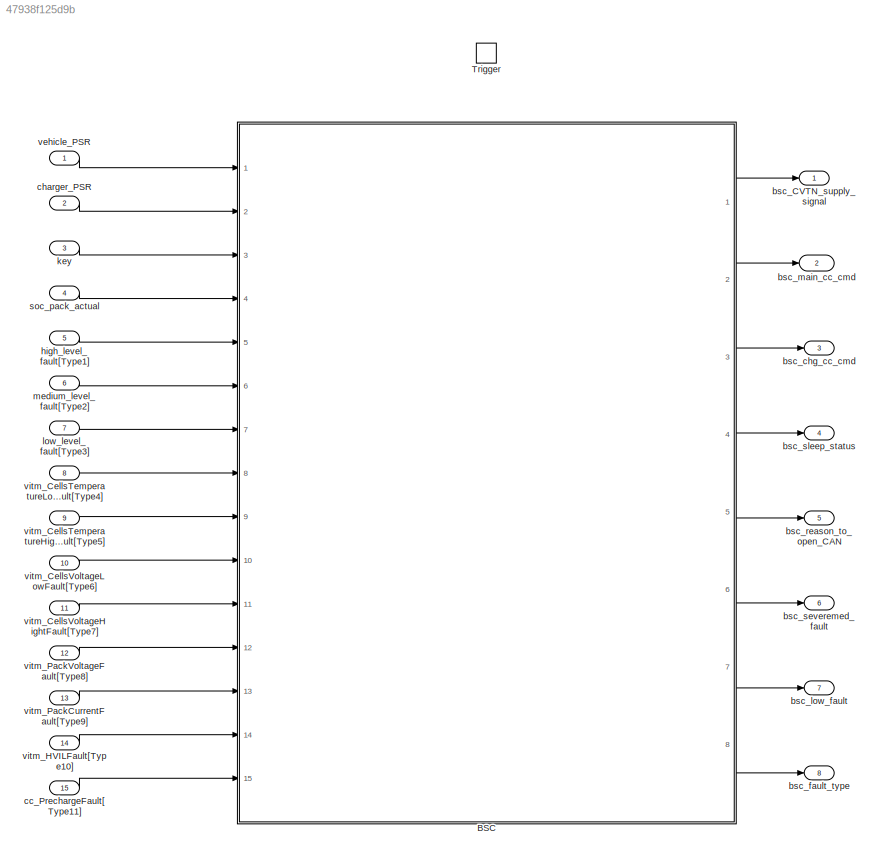
MODEL slx_47938f125d9b
KIND model
CONFIG AbsTol = auto
CONFIG FixedStep = bsck_stepSize
CONFIG MaxStep = auto
CONFIG MinStep = auto
CONFIG RelTol = 1e-3
CONFIG SampleTimeConstraint = Unconstrained
CONFIG Solver = FixedStepAuto
CONFIG SolverMode = Auto
CONFIG SolverName = FixedStepAuto
CONFIG StartTime = 0.0
CONFIG StopTime = 10.0
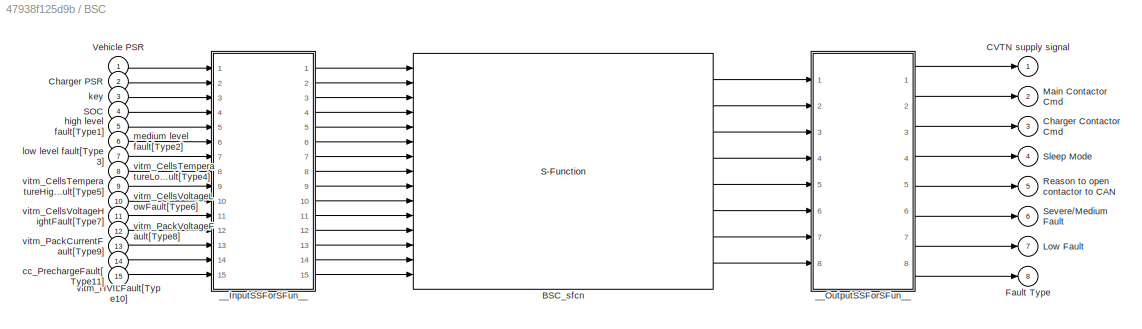
BLOCK [SubSystem] BSC
  Ports = [15, 8]
  RequestExecContextInheritance = off
  Variant = off
BLOCK [S-Function] BSC/BSC_sfcn
  CopyFcn = if ~strcmp(get_param(gcb,'Linkstatus'),'none') && ...\n~strcmp(get_param(gcb,'Linkstatus'),'implicit')      \n  set_param(gcb,'LinkStatus','none');                \nend
  EnableBusSupport = off
  FunctionName = BSC_sf
  Ports = [15, 8]
  SFunctionDeploymentMode = off
BLOCK [Outport] BSC/CVTN supply signal
  IconDisplay = Port number
  OutDataTypeStr = boolean
  PortDimensions = 1
  SamplingMode = Sample based
  SignalType = real
BLOCK [Outport] BSC/Charger Contactor Cmd
  IconDisplay = Port number
  OutDataTypeStr = boolean
  Port = 3
  PortDimensions = 1
  SamplingMode = Sample based
  SignalType = real
BLOCK [Inport] BSC/Charger PSR
  IconDisplay = Port number
  OutDataTypeStr = uint8
  Port = 2
  PortDimensions = 1
  SamplingMode = Sample based
  SignalType = real
BLOCK [Outport] BSC/Fault Type
  IconDisplay = Port number
  OutDataTypeStr = uint8
  Port = 8
  PortDimensions = 1
  SamplingMode = Sample based
  SignalType = real
BLOCK [Outport] BSC/Low Fault
  IconDisplay = Port number
  OutDataTypeStr = uint8
  Port = 7
  PortDimensions = 1
  SamplingMode = Sample based
  SignalType = real
BLOCK [Outport] BSC/Main Contactor Cmd
  IconDisplay = Port number
  OutDataTypeStr = boolean
  Port = 2
  PortDimensions = 1
  SamplingMode = Sample based
  SignalType = real
BLOCK [Outport] BSC/Reason to open contactor to CAN
  IconDisplay = Port number
  OutDataTypeStr = uint8
  Port = 5
  PortDimensions = 1
  SamplingMode = Sample based
  SignalType = real
BLOCK [Inport] BSC/SOC
  IconDisplay = Port number
  OutDataTypeStr = double
  Port = 4
  PortDimensions = 1
  SamplingMode = Sample based
  SignalType = real
BLOCK [Outport] BSC/Severe//Medium Fault
  IconDisplay = Port number
  OutDataTypeStr = uint8
  Port = 6
  PortDimensions = 1
  SamplingMode = Sample based
  SignalType = real
BLOCK [Outport] BSC/Sleep Mode
  IconDisplay = Port number
  OutDataTypeStr = boolean
  Port = 4
  PortDimensions = 1
  SamplingMode = Sample based
  SignalType = real
BLOCK [Inport] BSC/Vehicle PSR
  IconDisplay = Port number
  OutDataTypeStr = uint8
  PortDimensions = 1
  SamplingMode = Sample based
  SignalType = real
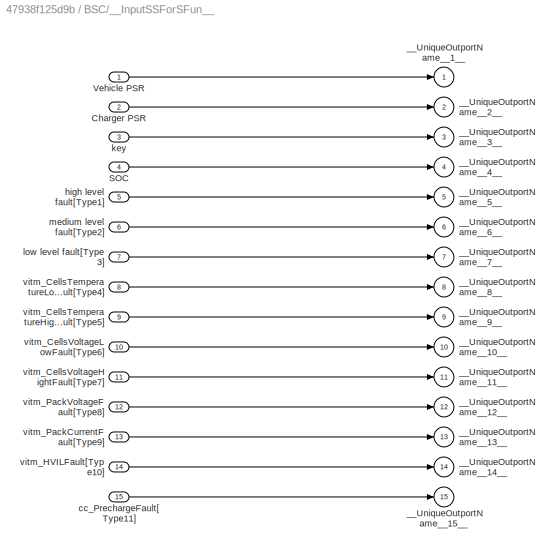
BLOCK [SubSystem] BSC/__InputSSForSFun__
  PermitHierarchicalResolution = ExplicitOnly
  Ports = [15, 15]
  RequestExecContextInheritance = off
  Variant = off
BLOCK [Inport] BSC/__InputSSForSFun__/Charger PSR
  IconDisplay = Port number
  OutDataTypeStr = uint8
  Port = 2
  PortDimensions = 1
  SamplingMode = Sample based
  SignalType = real
BLOCK [Inport] BSC/__InputSSForSFun__/SOC
  IconDisplay = Port number
  OutDataTypeStr = double
  Port = 4
  PortDimensions = 1
  SamplingMode = Sample based
  SignalType = real
BLOCK [Inport] BSC/__InputSSForSFun__/Vehicle PSR
  IconDisplay = Port number
  OutDataTypeStr = uint8
  PortDimensions = 1
  SamplingMode = Sample based
  SignalType = real
BLOCK [Outport] BSC/__InputSSForSFun__/__UniqueOutportName__10__
  IconDisplay = Port number
  Port = 10
BLOCK [Outport] BSC/__InputSSForSFun__/__UniqueOutportName__11__
  IconDisplay = Port number
  Port = 11
BLOCK [Outport] BSC/__InputSSForSFun__/__UniqueOutportName__12__
  IconDisplay = Port number
  Port = 12
BLOCK [Outport] BSC/__InputSSForSFun__/__UniqueOutportName__13__
  IconDisplay = Port number
  Port = 13
BLOCK [Outport] BSC/__InputSSForSFun__/__UniqueOutportName__14__
  IconDisplay = Port number
  Port = 14
BLOCK [Outport] BSC/__InputSSForSFun__/__UniqueOutportName__15__
  IconDisplay = Port number
  Port = 15
BLOCK [Outport] BSC/__InputSSForSFun__/__UniqueOutportName__1__
  IconDisplay = Port number
BLOCK [Outport] BSC/__InputSSForSFun__/__UniqueOutportName__2__
  IconDisplay = Port number
  Port = 2
BLOCK [Outport] BSC/__InputSSForSFun__/__UniqueOutportName__3__
  IconDisplay = Port number
  Port = 3
BLOCK [Outport] BSC/__InputSSForSFun__/__UniqueOutportName__4__
  IconDisplay = Port number
  Port = 4
BLOCK [Outport] BSC/__InputSSForSFun__/__UniqueOutportName__5__
  IconDisplay = Port number
  Port = 5
BLOCK [Outport] BSC/__InputSSForSFun__/__UniqueOutportName__6__
  IconDisplay = Port number
  Port = 6
BLOCK [Outport] BSC/__InputSSForSFun__/__UniqueOutportName__7__
  IconDisplay = Port number
  Port = 7
BLOCK [Outport] BSC/__InputSSForSFun__/__UniqueOutportName__8__
  IconDisplay = Port number
  Port = 8
BLOCK [Outport] BSC/__InputSSForSFun__/__UniqueOutportName__9__
  IconDisplay = Port number
  Port = 9
BLOCK [Inport] BSC/__InputSSForSFun__/cc_PrechargeFault[Type11]
  IconDisplay = Port number
  OutDataTypeStr = uint8
  Port = 15
  PortDimensions = 1
  SamplingMode = Sample based
  SignalType = real
BLOCK [Inport] BSC/__InputSSForSFun__/high level fault[Type1]
  IconDisplay = Port number
  OutDataTypeStr = uint8
  Port = 5
  PortDimensions = 1
  SamplingMode = Sample based
  SignalType = real
BLOCK [Inport] BSC/__InputSSForSFun__/key
  IconDisplay = Port number
  OutDataTypeStr = uint8
  Port = 3
  PortDimensions = 1
  SamplingMode = Sample based
  SignalType = real
BLOCK [Inport] BSC/__InputSSForSFun__/low level fault[Type3]
  IconDisplay = Port number
  OutDataTypeStr = uint8
  Port = 7
  PortDimensions = 1
  SamplingMode = Sample based
  SignalType = real
BLOCK [Inport] BSC/__InputSSForSFun__/medium level fault[Type2]
  IconDisplay = Port number
  OutDataTypeStr = uint8
  Port = 6
  PortDimensions = 1
  SamplingMode = Sample based
  SignalType = real
BLOCK [Inport] BSC/__InputSSForSFun__/vitm_CellsTemperatureHighFault[Type5]
  IconDisplay = Port number
  OutDataTypeStr = uint8
  Port = 9
  PortDimensions = 1
  SamplingMode = Sample based
  SignalType = real
BLOCK [Inport] BSC/__InputSSForSFun__/vitm_CellsTemperatureLowFault[Type4]
  IconDisplay = Port number
  OutDataTypeStr = uint8
  Port = 8
  PortDimensions = 1
  SamplingMode = Sample based
  SignalType = real
BLOCK [Inport] BSC/__InputSSForSFun__/vitm_CellsVoltageHightFault[Type7]
  IconDisplay = Port number
  OutDataTypeStr = uint8
  Port = 11
  PortDimensions = 1
  SamplingMode = Sample based
  SignalType = real
BLOCK [Inport] BSC/__InputSSForSFun__/vitm_CellsVoltageLowFault[Type6]
  IconDisplay = Port number
  OutDataTypeStr = uint8
  Port = 10
  PortDimensions = 1
  SamplingMode = Sample based
  SignalType = real
BLOCK [Inport] BSC/__InputSSForSFun__/vitm_HVILFault[Type10]
  IconDisplay = Port number
  OutDataTypeStr = uint8
  Port = 14
  PortDimensions = 1
  SamplingMode = Sample based
  SignalType = real
BLOCK [Inport] BSC/__InputSSForSFun__/vitm_PackCurrentFault[Type9]
  IconDisplay = Port number
  OutDataTypeStr = uint8
  Port = 13
  PortDimensions = 1
  SamplingMode = Sample based
  SignalType = real
BLOCK [Inport] BSC/__InputSSForSFun__/vitm_PackVoltageFault[Type8]
  IconDisplay = Port number
  OutDataTypeStr = uint8
  Port = 12
  PortDimensions = 1
  SamplingMode = Sample based
  SignalType = real
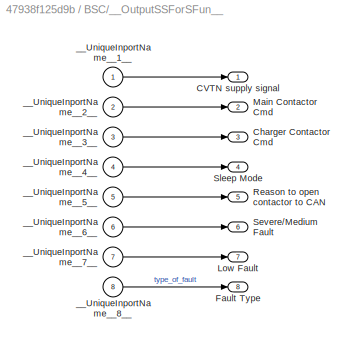
BLOCK [SubSystem] BSC/__OutputSSForSFun__
  PermitHierarchicalResolution = ExplicitOnly
  Ports = [8, 8]
  RequestExecContextInheritance = off
  Variant = off
BLOCK [Outport] BSC/__OutputSSForSFun__/CVTN supply signal
  IconDisplay = Port number
  OutDataTypeStr = boolean
  PortDimensions = 1
  SamplingMode = Sample based
  SignalType = real
BLOCK [Outport] BSC/__OutputSSForSFun__/Charger Contactor Cmd
  IconDisplay = Port number
  OutDataTypeStr = boolean
  Port = 3
  PortDimensions = 1
  SamplingMode = Sample based
  SignalType = real
BLOCK [Outport] BSC/__OutputSSForSFun__/Fault Type
  IconDisplay = Port number
  OutDataTypeStr = uint8
  Port = 8
  PortDimensions = 1
  SamplingMode = Sample based
  SignalType = real
BLOCK [Outport] BSC/__OutputSSForSFun__/Low Fault
  IconDisplay = Port number
  OutDataTypeStr = uint8
  Port = 7
  PortDimensions = 1
  SamplingMode = Sample based
  SignalType = real
BLOCK [Outport] BSC/__OutputSSForSFun__/Main Contactor Cmd
  IconDisplay = Port number
  OutDataTypeStr = boolean
  Port = 2
  PortDimensions = 1
  SamplingMode = Sample based
  SignalType = real
BLOCK [Outport] BSC/__OutputSSForSFun__/Reason to open contactor to CAN
  IconDisplay = Port number
  OutDataTypeStr = uint8
  Port = 5
  PortDimensions = 1
  SamplingMode = Sample based
  SignalType = real
BLOCK [Outport] BSC/__OutputSSForSFun__/Severe//Medium Fault
  IconDisplay = Port number
  OutDataTypeStr = uint8
  Port = 6
  PortDimensions = 1
  SamplingMode = Sample based
  SignalType = real
BLOCK [Outport] BSC/__OutputSSForSFun__/Sleep Mode
  IconDisplay = Port number
  OutDataTypeStr = boolean
  Port = 4
  PortDimensions = 1
  SamplingMode = Sample based
  SignalType = real
BLOCK [Inport] BSC/__OutputSSForSFun__/__UniqueInportName__1__
  IconDisplay = Port number
BLOCK [Inport] BSC/__OutputSSForSFun__/__UniqueInportName__2__
  IconDisplay = Port number
  Port = 2
BLOCK [Inport] BSC/__OutputSSForSFun__/__UniqueInportName__3__
  IconDisplay = Port number
  Port = 3
BLOCK [Inport] BSC/__OutputSSForSFun__/__UniqueInportName__4__
  IconDisplay = Port number
  Port = 4
BLOCK [Inport] BSC/__OutputSSForSFun__/__UniqueInportName__5__
  IconDisplay = Port number
  Port = 5
BLOCK [Inport] BSC/__OutputSSForSFun__/__UniqueInportName__6__
  IconDisplay = Port number
  Port = 6
BLOCK [Inport] BSC/__OutputSSForSFun__/__UniqueInportName__7__
  IconDisplay = Port number
  Port = 7
BLOCK [Inport] BSC/__OutputSSForSFun__/__UniqueInportName__8__
  IconDisplay = Port number
  Port = 8
BLOCK [Inport] BSC/cc_PrechargeFault[Type11]
  IconDisplay = Port number
  OutDataTypeStr = uint8
  Port = 15
  PortDimensions = 1
  SamplingMode = Sample based
  SignalType = real
BLOCK [Inport] BSC/high level fault[Type1]
  IconDisplay = Port number
  OutDataTypeStr = uint8
  Port = 5
  PortDimensions = 1
  SamplingMode = Sample based
  SignalType = real
BLOCK [Inport] BSC/key
  IconDisplay = Port number
  OutDataTypeStr = uint8
  Port = 3
  PortDimensions = 1
  SamplingMode = Sample based
  SignalType = real
BLOCK [Inport] BSC/low level fault[Type3]
  IconDisplay = Port number
  OutDataTypeStr = uint8
  Port = 7
  PortDimensions = 1
  SamplingMode = Sample based
  SignalType = real
BLOCK [Inport] BSC/medium level fault[Type2]
  IconDisplay = Port number
  OutDataTypeStr = uint8
  Port = 6
  PortDimensions = 1
  SamplingMode = Sample based
  SignalType = real
BLOCK [Inport] BSC/vitm_CellsTemperatureHighFault[Type5]
  IconDisplay = Port number
  OutDataTypeStr = uint8
  Port = 9
  PortDimensions = 1
  SamplingMode = Sample based
  SignalType = real
BLOCK [Inport] BSC/vitm_CellsTemperatureLowFault[Type4]
  IconDisplay = Port number
  OutDataTypeStr = uint8
  Port = 8
  PortDimensions = 1
  SamplingMode = Sample based
  SignalType = real
BLOCK [Inport] BSC/vitm_CellsVoltageHightFault[Type7]
  IconDisplay = Port number
  OutDataTypeStr = uint8
  Port = 11
  PortDimensions = 1
  SamplingMode = Sample based
  SignalType = real
BLOCK [Inport] BSC/vitm_CellsVoltageLowFault[Type6]
  IconDisplay = Port number
  OutDataTypeStr = uint8
  Port = 10
  PortDimensions = 1
  SamplingMode = Sample based
  SignalType = real
BLOCK [Inport] BSC/vitm_HVILFault[Type10]
  IconDisplay = Port number
  OutDataTypeStr = uint8
  Port = 14
  PortDimensions = 1
  SamplingMode = Sample based
  SignalType = real
BLOCK [Inport] BSC/vitm_PackCurrentFault[Type9]
  IconDisplay = Port number
  OutDataTypeStr = uint8
  Port = 13
  PortDimensions = 1
  SamplingMode = Sample based
  SignalType = real
BLOCK [Inport] BSC/vitm_PackVoltageFault[Type8]
  IconDisplay = Port number
  OutDataTypeStr = uint8
  Port = 12
  PortDimensions = 1
  SamplingMode = Sample based
  SignalType = real
BLOCK [TriggerPort] Trigger
  PortDimensions = 1
  Ports = []
  StatesWhenEnabling = held
  TriggerType = function-call
BLOCK [Outport] bsc_CVTN_supply_signal
  IconDisplay = Port number
  OutDataTypeStr = boolean
  PortDimensions = 1
  SamplingMode = Sample based
  SignalType = real
BLOCK [Outport] bsc_chg_cc_cmd
  IconDisplay = Port number
  OutDataTypeStr = boolean
  Port = 3
  PortDimensions = 1
  SamplingMode = Sample based
  SignalType = real
BLOCK [Outport] bsc_fault_type
  IconDisplay = Port number
  OutDataTypeStr = uint8
  Port = 8
  PortDimensions = 1
  SamplingMode = Sample based
  SignalType = real
BLOCK [Outport] bsc_low_fault
  IconDisplay = Port number
  OutDataTypeStr = uint8
  Port = 7
  PortDimensions = 1
  SamplingMode = Sample based
  SignalType = real
BLOCK [Outport] bsc_main_cc_cmd
  IconDisplay = Port number
  OutDataTypeStr = boolean
  Port = 2
  PortDimensions = 1
  SamplingMode = Sample based
  SignalType = real
BLOCK [Outport] bsc_reason_to_open_CAN
  IconDisplay = Port number
  OutDataTypeStr = uint8
  Port = 5
  PortDimensions = 1
  SamplingMode = Sample based
  SignalType = real
BLOCK [Outport] bsc_severemed_fault
  IconDisplay = Port number
  OutDataTypeStr = uint8
  Port = 6
  PortDimensions = 1
  SamplingMode = Sample based
  SignalType = real
BLOCK [Outport] bsc_sleep_status
  IconDisplay = Port number
  OutDataTypeStr = boolean
  Port = 4
  PortDimensions = 1
  SamplingMode = Sample based
  SignalType = real
BLOCK [Inport] cc_PrechargeFault[Type11]
  IconDisplay = Port number
  OutDataTypeStr = uint8
  Port = 15
  PortDimensions = 1
  SamplingMode = Sample based
  SignalType = real
BLOCK [Inport] charger_PSR
  IconDisplay = Port number
  OutDataTypeStr = uint8
  Port = 2
  PortDimensions = 1
  SamplingMode = Sample based
  SignalType = real
BLOCK [Inport] high_level_fault[Type1]
  IconDisplay = Port number
  OutDataTypeStr = uint8
  Port = 5
  PortDimensions = 1
  SamplingMode = Sample based
  SignalType = real
BLOCK [Inport] key
  IconDisplay = Port number
  OutDataTypeStr = uint8
  Port = 3
  PortDimensions = 1
  SamplingMode = Sample based
  SignalType = real
BLOCK [Inport] low_level_fault[Type3]
  IconDisplay = Port number
  OutDataTypeStr = uint8
  Port = 7
  PortDimensions = 1
  SamplingMode = Sample based
  SignalType = real
BLOCK [Inport] medium_level_fault[Type2]
  IconDisplay = Port number
  OutDataTypeStr = uint8
  Port = 6
  PortDimensions = 1
  SamplingMode = Sample based
  SignalType = real
BLOCK [Inport] soc_pack_actual
  IconDisplay = Port number
  OutDataTypeStr = double
  Port = 4
  PortDimensions = 1
  SamplingMode = Sample based
  SignalType = real
BLOCK [Inport] vehicle_PSR
  IconDisplay = Port number
  OutDataTypeStr = uint8
  PortDimensions = 1
  SamplingMode = Sample based
  SignalType = real
BLOCK [Inport] vitm_CellsTemperatureHighFault[Type5]
  IconDisplay = Port number
  OutDataTypeStr = uint8
  Port = 9
  PortDimensions = 1
  SamplingMode = Sample based
  SignalType = real
BLOCK [Inport] vitm_CellsTemperatureLowFault[Type4]
  IconDisplay = Port number
  OutDataTypeStr = uint8
  Port = 8
  PortDimensions = 1
  SamplingMode = Sample based
  SignalType = real
BLOCK [Inport] vitm_CellsVoltageHightFault[Type7]
  IconDisplay = Port number
  OutDataTypeStr = uint8
  Port = 11
  PortDimensions = 1
  SamplingMode = Sample based
  SignalType = real
BLOCK [Inport] vitm_CellsVoltageLowFault[Type6]
  IconDisplay = Port number
  OutDataTypeStr = uint8
  Port = 10
  PortDimensions = 1
  SamplingMode = Sample based
  SignalType = real
BLOCK [Inport] vitm_HVILFault[Type10]
  IconDisplay = Port number
  OutDataTypeStr = uint8
  Port = 14
  PortDimensions = 1
  SamplingMode = Sample based
  SignalType = real
BLOCK [Inport] vitm_PackCurrentFault[Type9]
  IconDisplay = Port number
  OutDataTypeStr = uint8
  Port = 13
  PortDimensions = 1
  SamplingMode = Sample based
  SignalType = real
BLOCK [Inport] vitm_PackVoltageFault[Type8]
  IconDisplay = Port number
  OutDataTypeStr = uint8
  Port = 12
  PortDimensions = 1
  SamplingMode = Sample based
  SignalType = real
LINE BSC/BSC_sfcn:1 -> BSC/__OutputSSForSFun__:1
LINE BSC/BSC_sfcn:2 -> BSC/__OutputSSForSFun__:2
LINE BSC/BSC_sfcn:3 -> BSC/__OutputSSForSFun__:3
LINE BSC/BSC_sfcn:4 -> BSC/__OutputSSForSFun__:4
LINE BSC/BSC_sfcn:5 -> BSC/__OutputSSForSFun__:5
LINE BSC/BSC_sfcn:6 -> BSC/__OutputSSForSFun__:6
LINE BSC/BSC_sfcn:7 -> BSC/__OutputSSForSFun__:7
LINE BSC/BSC_sfcn:8 -> BSC/__OutputSSForSFun__:8
LINE BSC/Charger PSR:1 -> BSC/__InputSSForSFun__:2
LINE BSC/SOC:1 -> BSC/__InputSSForSFun__:4
LINE BSC/Vehicle PSR:1 -> BSC/__InputSSForSFun__:1
LINE BSC/__InputSSForSFun__/Charger PSR:1 -> BSC/__InputSSForSFun__/__UniqueOutportName__2__:1
LINE BSC/__InputSSForSFun__/SOC:1 -> BSC/__InputSSForSFun__/__UniqueOutportName__4__:1
LINE BSC/__InputSSForSFun__/Vehicle PSR:1 -> BSC/__InputSSForSFun__/__UniqueOutportName__1__:1
LINE BSC/__InputSSForSFun__/cc_PrechargeFault[Type11]:1 -> BSC/__InputSSForSFun__/__UniqueOutportName__15__:1
LINE BSC/__InputSSForSFun__/high level fault[Type1]:1 -> BSC/__InputSSForSFun__/__UniqueOutportName__5__:1
LINE BSC/__InputSSForSFun__/key:1 -> BSC/__InputSSForSFun__/__UniqueOutportName__3__:1
LINE BSC/__InputSSForSFun__/low level fault[Type3]:1 -> BSC/__InputSSForSFun__/__UniqueOutportName__7__:1
LINE BSC/__InputSSForSFun__/medium level fault[Type2]:1 -> BSC/__InputSSForSFun__/__UniqueOutportName__6__:1
LINE BSC/__InputSSForSFun__/vitm_CellsTemperatureHighFault[Type5]:1 -> BSC/__InputSSForSFun__/__UniqueOutportName__9__:1
LINE BSC/__InputSSForSFun__/vitm_CellsTemperatureLowFault[Type4]:1 -> BSC/__InputSSForSFun__/__UniqueOutportName__8__:1
LINE BSC/__InputSSForSFun__/vitm_CellsVoltageHightFault[Type7]:1 -> BSC/__InputSSForSFun__/__UniqueOutportName__11__:1
LINE BSC/__InputSSForSFun__/vitm_CellsVoltageLowFault[Type6]:1 -> BSC/__InputSSForSFun__/__UniqueOutportName__10__:1
LINE BSC/__InputSSForSFun__/vitm_HVILFault[Type10]:1 -> BSC/__InputSSForSFun__/__UniqueOutportName__14__:1
LINE BSC/__InputSSForSFun__/vitm_PackCurrentFault[Type9]:1 -> BSC/__InputSSForSFun__/__UniqueOutportName__13__:1
LINE BSC/__InputSSForSFun__/vitm_PackVoltageFault[Type8]:1 -> BSC/__InputSSForSFun__/__UniqueOutportName__12__:1
LINE BSC/__InputSSForSFun__:1 -> BSC/BSC_sfcn:1
LINE BSC/__InputSSForSFun__:10 -> BSC/BSC_sfcn:10
LINE BSC/__InputSSForSFun__:11 -> BSC/BSC_sfcn:11
LINE BSC/__InputSSForSFun__:12 -> BSC/BSC_sfcn:12
LINE BSC/__InputSSForSFun__:13 -> BSC/BSC_sfcn:13
LINE BSC/__InputSSForSFun__:14 -> BSC/BSC_sfcn:14
LINE BSC/__InputSSForSFun__:15 -> BSC/BSC_sfcn:15
LINE BSC/__InputSSForSFun__:2 -> BSC/BSC_sfcn:2
LINE BSC/__InputSSForSFun__:3 -> BSC/BSC_sfcn:3
LINE BSC/__InputSSForSFun__:4 -> BSC/BSC_sfcn:4
LINE BSC/__InputSSForSFun__:5 -> BSC/BSC_sfcn:5
LINE BSC/__InputSSForSFun__:6 -> BSC/BSC_sfcn:6
LINE BSC/__InputSSForSFun__:7 -> BSC/BSC_sfcn:7
LINE BSC/__InputSSForSFun__:8 -> BSC/BSC_sfcn:8
LINE BSC/__InputSSForSFun__:9 -> BSC/BSC_sfcn:9
LINE BSC/__OutputSSForSFun__/__UniqueInportName__1__:1 -> BSC/__OutputSSForSFun__/CVTN supply signal:1
LINE BSC/__OutputSSForSFun__/__UniqueInportName__2__:1 -> BSC/__OutputSSForSFun__/Main Contactor Cmd:1
LINE BSC/__OutputSSForSFun__/__UniqueInportName__3__:1 -> BSC/__OutputSSForSFun__/Charger Contactor Cmd:1
LINE BSC/__OutputSSForSFun__/__UniqueInportName__4__:1 -> BSC/__OutputSSForSFun__/Sleep Mode:1
LINE BSC/__OutputSSForSFun__/__UniqueInportName__5__:1 -> BSC/__OutputSSForSFun__/Reason to open contactor to CAN:1
LINE BSC/__OutputSSForSFun__/__UniqueInportName__6__:1 -> BSC/__OutputSSForSFun__/Severe//Medium Fault:1
LINE BSC/__OutputSSForSFun__/__UniqueInportName__7__:1 -> BSC/__OutputSSForSFun__/Low Fault:1
LINE BSC/__OutputSSForSFun__/__UniqueInportName__8__:1 -> BSC/__OutputSSForSFun__/Fault Type:1
LINE BSC/__OutputSSForSFun__:1 -> BSC/CVTN supply signal:1
LINE BSC/__OutputSSForSFun__:2 -> BSC/Main Contactor Cmd:1
LINE BSC/__OutputSSForSFun__:3 -> BSC/Charger Contactor Cmd:1
LINE BSC/__OutputSSForSFun__:4 -> BSC/Sleep Mode:1
LINE BSC/__OutputSSForSFun__:5 -> BSC/Reason to open contactor to CAN:1
LINE BSC/__OutputSSForSFun__:6 -> BSC/Severe//Medium Fault:1
LINE BSC/__OutputSSForSFun__:7 -> BSC/Low Fault:1
LINE BSC/__OutputSSForSFun__:8 -> BSC/Fault Type:1
LINE BSC/cc_PrechargeFault[Type11]:1 -> BSC/__InputSSForSFun__:15
LINE BSC/high level fault[Type1]:1 -> BSC/__InputSSForSFun__:5
LINE BSC/key:1 -> BSC/__InputSSForSFun__:3
LINE BSC/low level fault[Type3]:1 -> BSC/__InputSSForSFun__:7
LINE BSC/medium level fault[Type2]:1 -> BSC/__InputSSForSFun__:6
LINE BSC/vitm_CellsTemperatureHighFault[Type5]:1 -> BSC/__InputSSForSFun__:9
LINE BSC/vitm_CellsTemperatureLowFault[Type4]:1 -> BSC/__InputSSForSFun__:8
LINE BSC/vitm_CellsVoltageHightFault[Type7]:1 -> BSC/__InputSSForSFun__:11
LINE BSC/vitm_CellsVoltageLowFault[Type6]:1 -> BSC/__InputSSForSFun__:10
LINE BSC/vitm_HVILFault[Type10]:1 -> BSC/__InputSSForSFun__:14
LINE BSC/vitm_PackCurrentFault[Type9]:1 -> BSC/__InputSSForSFun__:13
LINE BSC/vitm_PackVoltageFault[Type8]:1 -> BSC/__InputSSForSFun__:12
LINE BSC:1 -> bsc_CVTN_supply_signal:1
LINE BSC:2 -> bsc_main_cc_cmd:1
LINE BSC:3 -> bsc_chg_cc_cmd:1
LINE BSC:4 -> bsc_sleep_status:1
LINE BSC:5 -> bsc_reason_to_open_CAN:1
LINE BSC:6 -> bsc_severemed_fault:1
LINE BSC:7 -> bsc_low_fault:1
LINE BSC:8 -> bsc_fault_type:1
LINE cc_PrechargeFault[Type11]:1 -> BSC:15
LINE charger_PSR:1 -> BSC:2
LINE high_level_fault[Type1]:1 -> BSC:5
LINE key:1 -> BSC:3
LINE low_level_fault[Type3]:1 -> BSC:7
LINE medium_level_fault[Type2]:1 -> BSC:6
LINE soc_pack_actual:1 -> BSC:4
LINE vehicle_PSR:1 -> BSC:1
LINE vitm_CellsTemperatureHighFault[Type5]:1 -> BSC:9
LINE vitm_CellsTemperatureLowFault[Type4]:1 -> BSC:8
LINE vitm_CellsVoltageHightFault[Type7]:1 -> BSC:11
LINE vitm_CellsVoltageLowFault[Type6]:1 -> BSC:10
LINE vitm_HVILFault[Type10]:1 -> BSC:14
LINE vitm_PackCurrentFault[Type9]:1 -> BSC:13
LINE vitm_PackVoltageFault[Type8]:1 -> BSC:12
